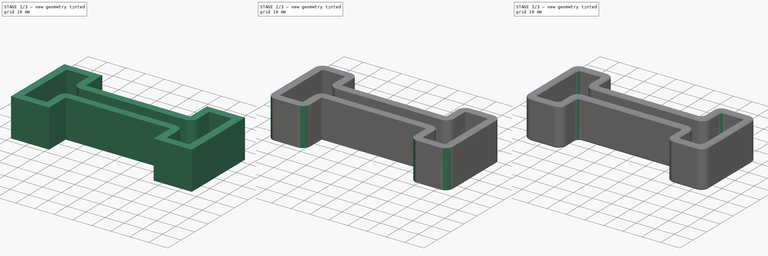
[diagram: build sequence overview — one tinted view per stage of 3, left to right]
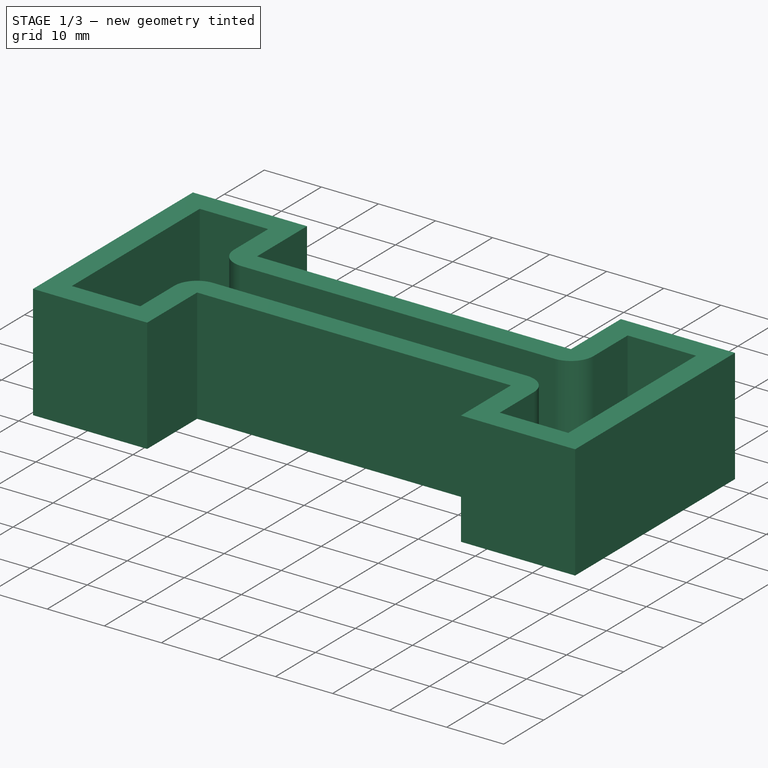
[diagram: stage 1 of 3 — iso view after this stage's code; geometry added in this stage tinted green]
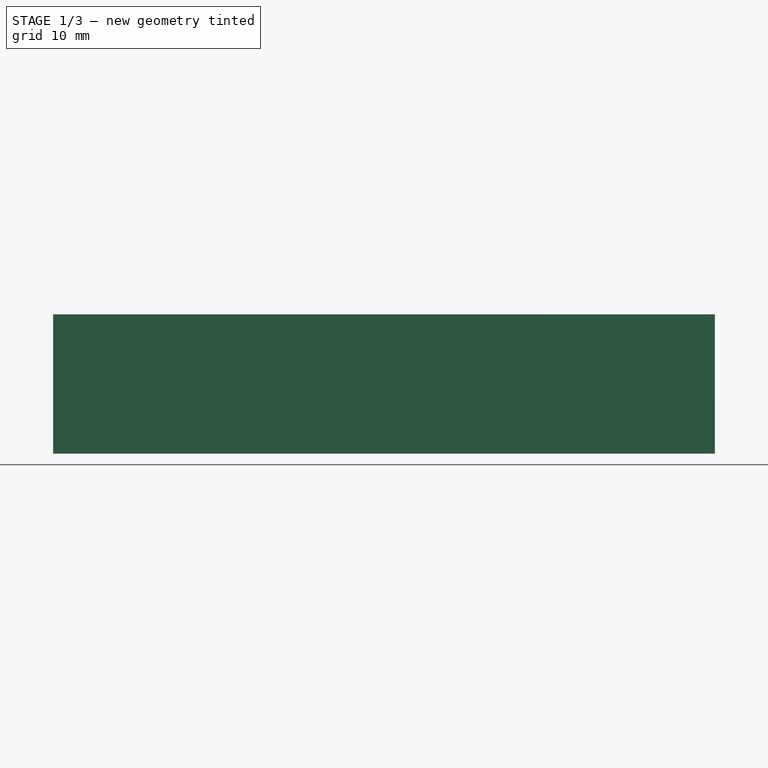
[diagram: stage 1 of 3 — front view after this stage's code; geometry added in this stage tinted green]
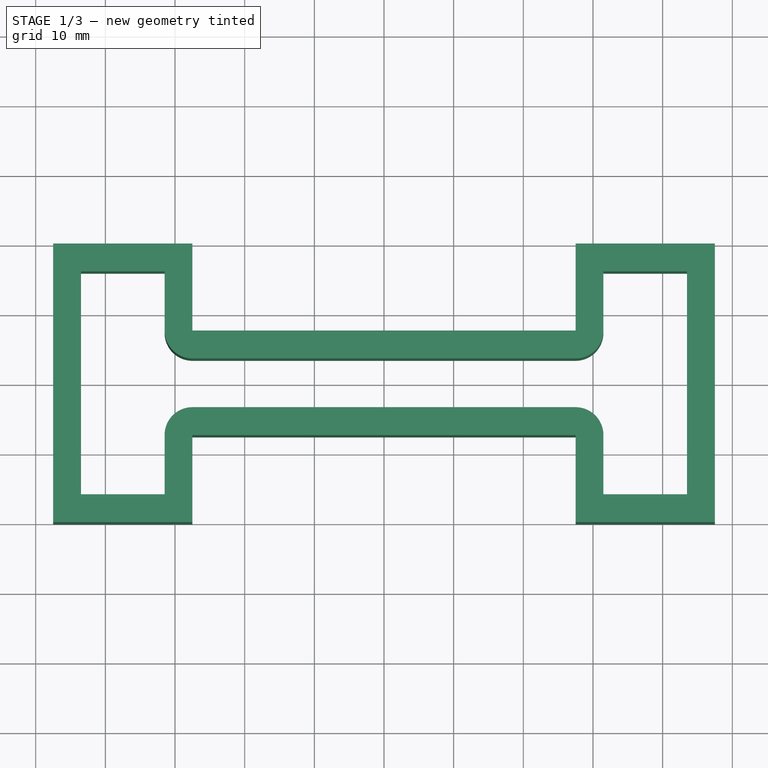
[diagram: stage 1 of 3 — top view after this stage's code; geometry added in this stage tinted green]
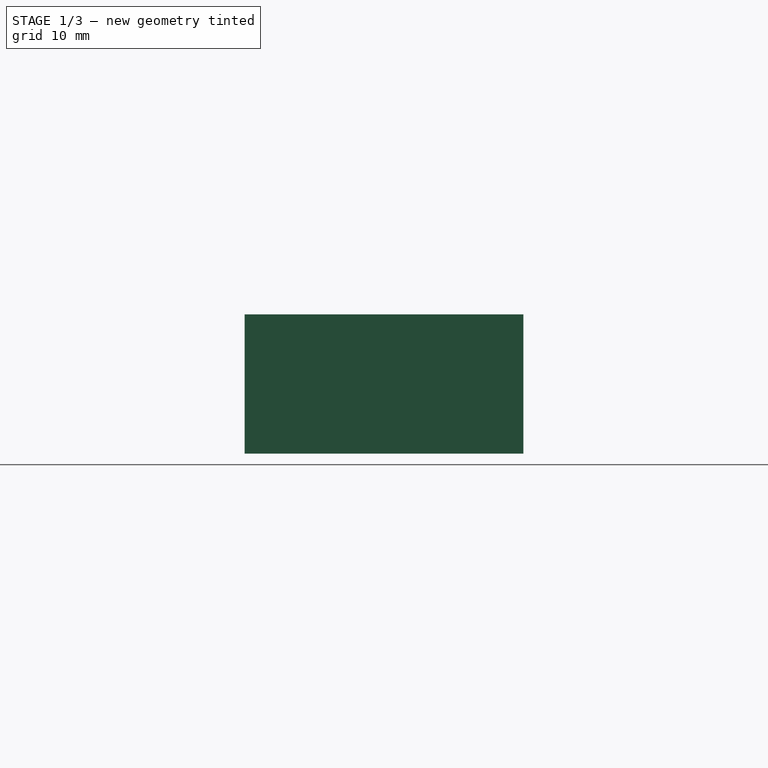
[diagram: stage 1 of 3 — right view after this stage's code; geometry added in this stage tinted green]
FCSTD DOCUMENT  (FreeCAD 0.22R36958 (Git))
Label: refer-door-block
License: All rights reserved
LicenseURL: http://en.wikipedia.org/wiki/All_rights_reserved
objects: PartDesign::Fillet×2, Sketcher::SketchObject×1, PartDesign::Pad×1, PartDesign::Thickness×1, PartDesign::Chamfer×1, PartDesign::Body×1
note: 12 computed .brp shape members not serialized (recipe doc carries the construction recipe); baked Part::Feature solids carry a one-line shape summary decoded from their .brp

FEATURE [Sketcher::SketchObject] Sketch
  AttachmentSupport = -> [XY_Plane]
  FullyConstrained = true
  MapMode = 5
  sketch-geometry (12):
    g0: LineSegment StartX=-47.5 StartY=20 StartZ=0 EndX=-27.5 EndY=20 EndZ=0
    g1: LineSegment StartX=-27.5 StartY=20 StartZ=0 EndX=-27.5 EndY=7.5 EndZ=0
    g2: LineSegment StartX=-27.5 StartY=7.5 StartZ=0 EndX=27.5 EndY=7.5 EndZ=0
    g3: LineSegment StartX=27.5 StartY=7.5 StartZ=0 EndX=27.5 EndY=20 EndZ=0
    g4: LineSegment StartX=27.5 StartY=20 StartZ=0 EndX=47.5 EndY=20 EndZ=0
    g5: LineSegment StartX=47.5 StartY=20 StartZ=0 EndX=47.5 EndY=-20 EndZ=0
    g6: LineSegment StartX=47.5 StartY=-20 StartZ=0 EndX=27.5 EndY=-20 EndZ=0
    g7: LineSegment StartX=27.5 StartY=-20 StartZ=0 EndX=27.5 EndY=-7.5 EndZ=0
    g8: LineSegment StartX=27.5 StartY=-7.5 StartZ=0 EndX=-27.5 EndY=-7.5 EndZ=0
    g9: LineSegment StartX=-27.5 StartY=-7.5 StartZ=0 EndX=-27.5 EndY=-20 EndZ=0
    g10: LineSegment StartX=-27.5 StartY=-20 StartZ=0 EndX=-47.5 EndY=-20 EndZ=0
    g11: LineSegment StartX=-47.5 StartY=-20 StartZ=0 EndX=-47.5 EndY=20 EndZ=0
  constraints (34):
    c: Horizontal(g0)
    c: Coincident(g0,g1)
    c: Vertical(g1)
    c: Coincident(g1,g2)
    c: Horizontal(g2)
    c: Coincident(g2,g3)
    c: Vertical(g3)
    c: Coincident(g3,g4)
    c: Horizontal(g4)
    c: Coincident(g4,g5)
    c: Vertical(g5)
    c: Coincident(g5,g6)
    c: Horizontal(g6)
    c: Coincident(g6,g7)
    c: Vertical(g7)
    c: Coincident(g7,g8)
    c: Coincident(g8,g9)
    c: Vertical(g9)
    c: Coincident(g9,g10)
    c: Horizontal(g10)
    c: Coincident(g10,g11)
    c: Coincident(g11,g0)
    c: Vertical(g11)
    c: Equal(g11,g5)
    c: Equal(g0,g10)
    c: Equal(g0,g4)
    c: Symmetric(g8,g7,g-2)
    c: DistanceX(g0,g0) = 20
    c: DistanceY(g11,g11) = 40
    c: DistanceY(g8,g1) = 15
    c: Equal(g1,g9)
    c: Horizontal(g9,g6)
    c: DistanceX(g1,g2) = 55
    c: Symmetric(g2,g7,g-1)
FEATURE [PartDesign::Pad] Pad
  Direction = (0,0,1)
  Length = 20
  Length2 = 10
  Profile = -> Sketch
  ReferenceAxis = -> Sketch [N_Axis]
  Suppressed = false
  Type = 0
FEATURE [PartDesign::Thickness] Thickness
  Base = -> Pad [Face13,Face14]
  BaseFeature = -> Pad
  Intersection = false
  Join = 0
  Mode = 0
  Reversed = true
  SupportTransform = false
  Suppressed = false
  Value = 4
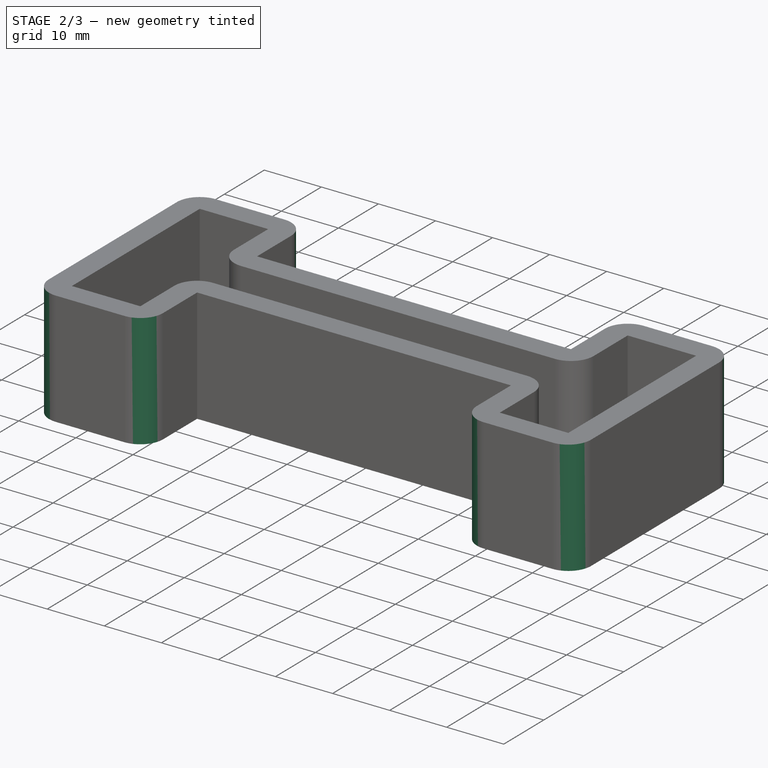
[diagram: stage 2 of 3 — iso view after this stage's code; geometry added in this stage tinted green]
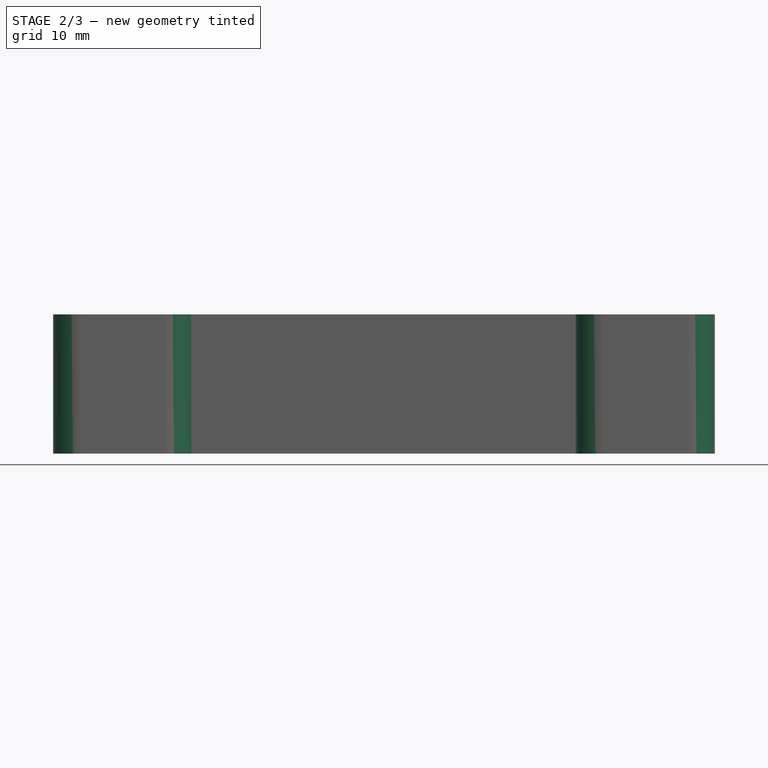
[diagram: stage 2 of 3 — front view after this stage's code; geometry added in this stage tinted green]
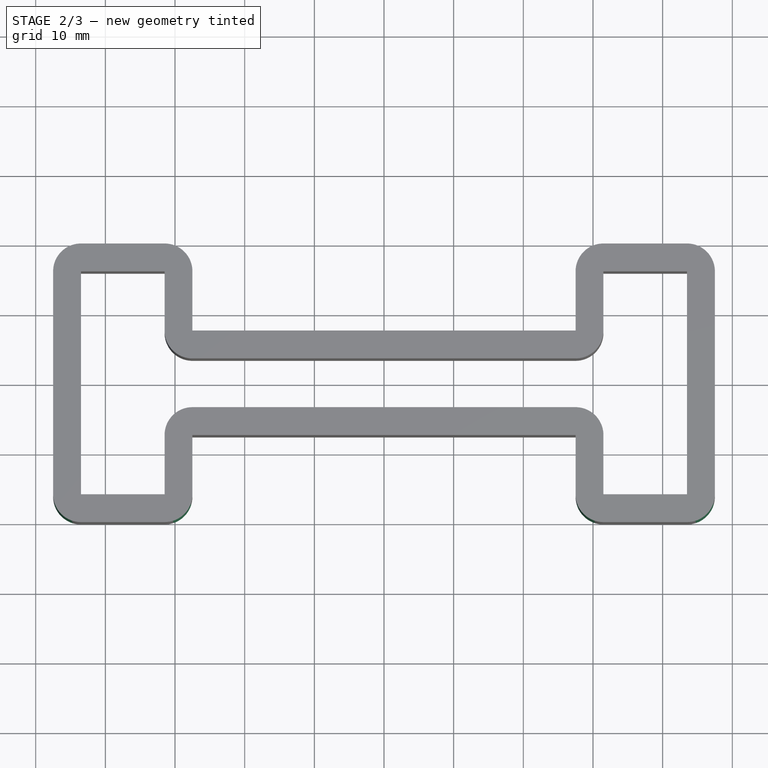
[diagram: stage 2 of 3 — top view after this stage's code; geometry added in this stage tinted green]
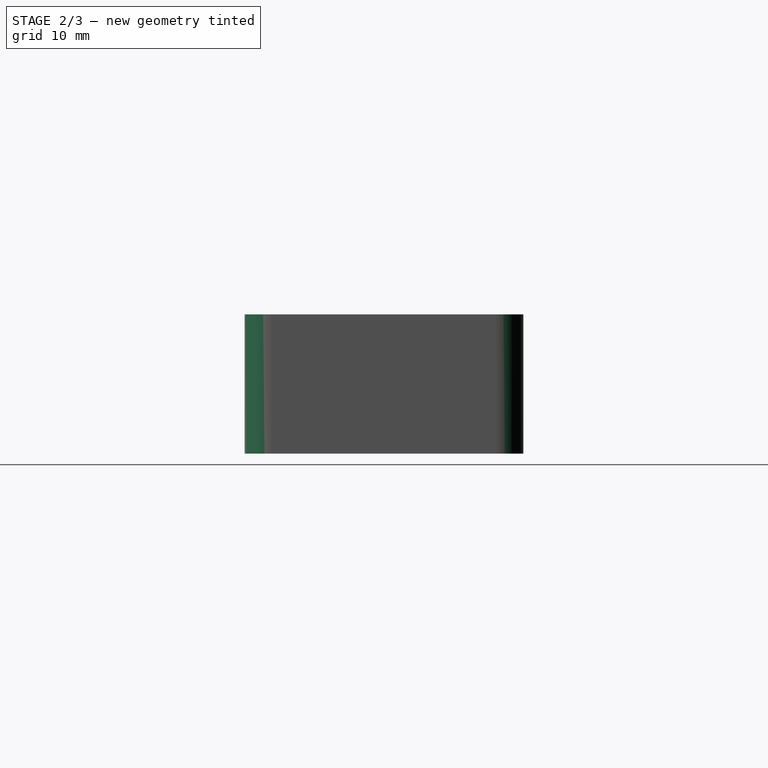
[diagram: stage 2 of 3 — right view after this stage's code; geometry added in this stage tinted green]
FEATURE [PartDesign::Fillet] Fillet
  Base = -> Thickness [Edge32,Edge29,Edge20,Edge17,Edge14,Edge11,Edge2,Edge1]
  BaseFeature = -> Thickness
  Radius = 4
  SupportTransform = false
  Suppressed = false
  UseAllEdges = false
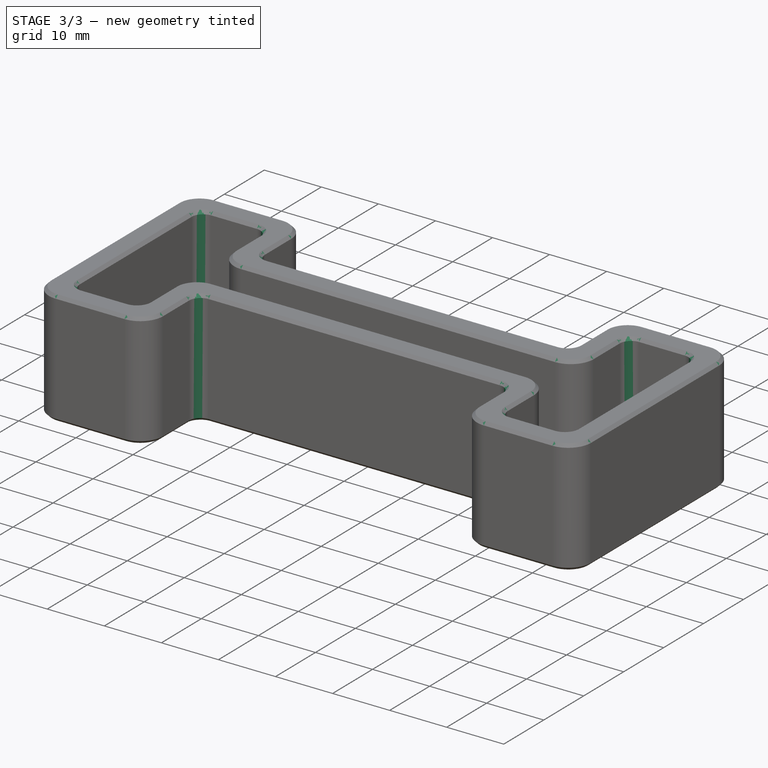
[diagram: stage 3 of 3 — iso view after this stage's code; geometry added in this stage tinted green]
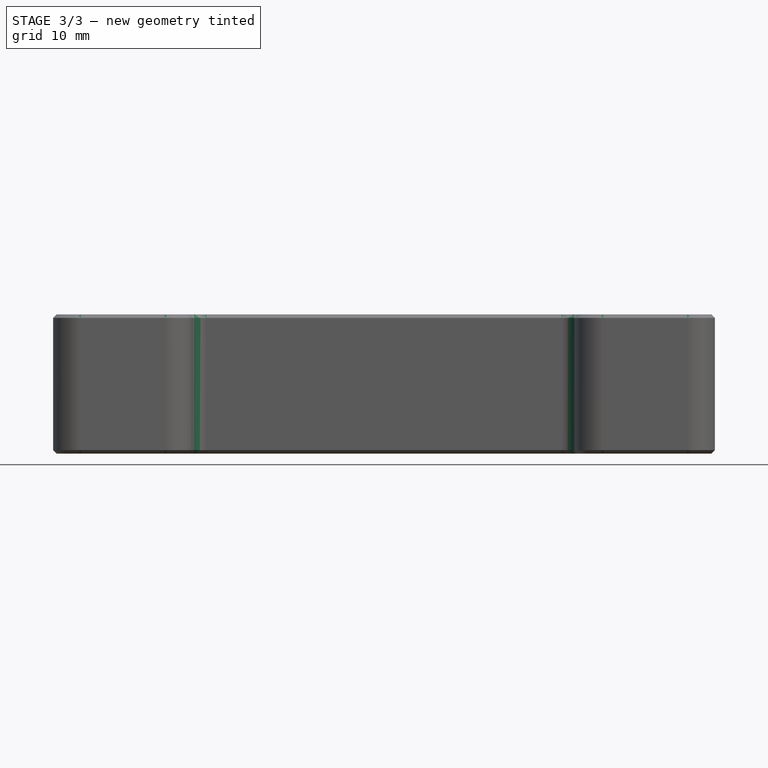
[diagram: stage 3 of 3 — front view after this stage's code; geometry added in this stage tinted green]
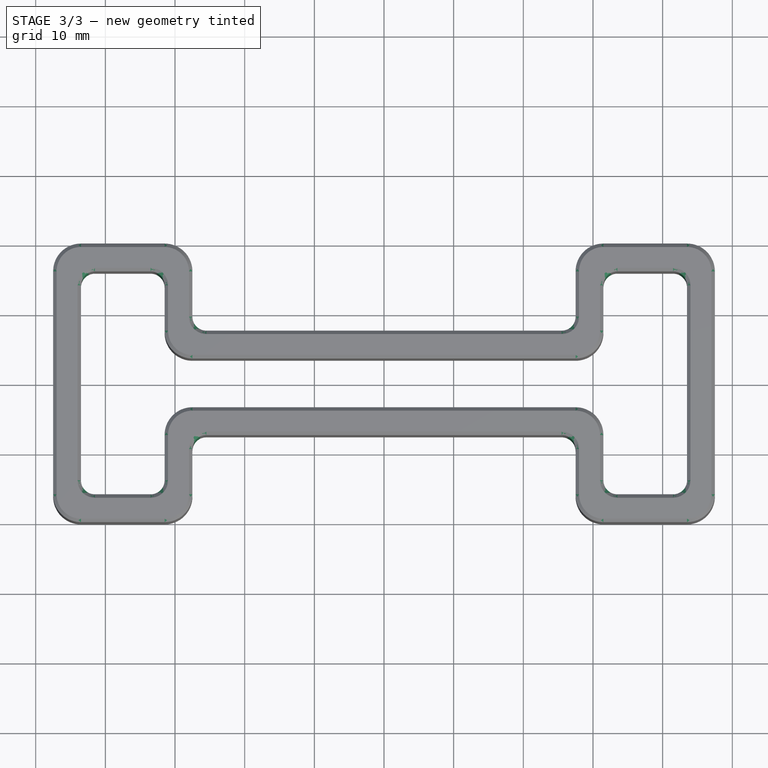
[diagram: stage 3 of 3 — top view after this stage's code; geometry added in this stage tinted green]
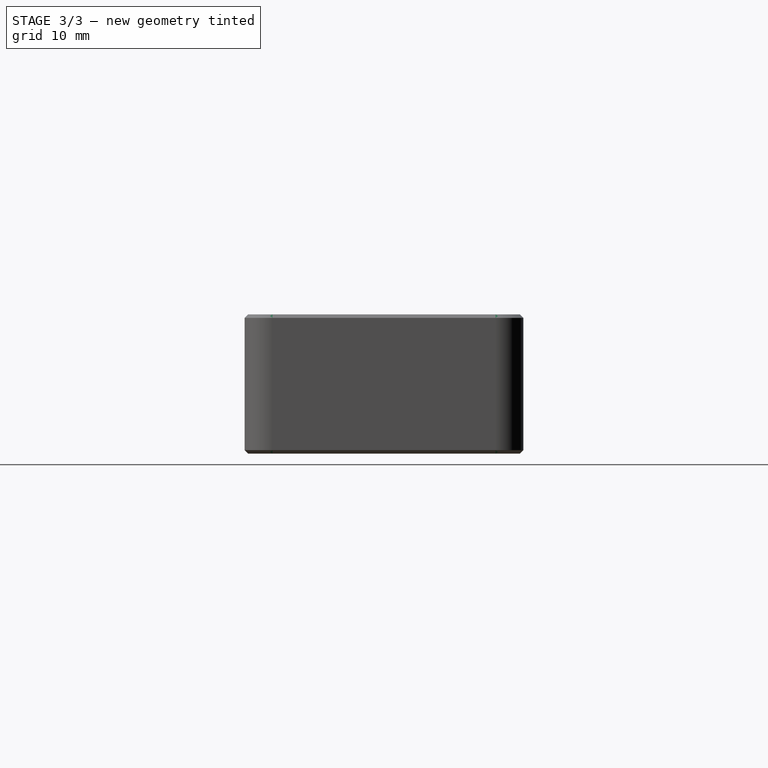
[diagram: stage 3 of 3 — right view after this stage's code; geometry added in this stage tinted green]
FEATURE [PartDesign::Fillet] Fillet001
  Base = -> Fillet [Edge85,Edge78,Edge80,Edge87,Edge95,Edge96,Edge93,Edge94,Edge101,Edge102,Edge104,Edge103]
  BaseFeature = -> Fillet
  Radius = 2
  SupportTransform = false
  Suppressed = false
  UseAllEdges = false
FEATURE [PartDesign::Chamfer] Chamfer
  Angle = 45
  Base = -> Fillet001 [Face50,Face1]
  BaseFeature = -> Fillet001
  ChamferType = 0
  FlipDirection = false
  Size = 0.5
  Size2 = 1
  SupportTransform = false
  Suppressed = false
  UseAllEdges = false
FEATURE [PartDesign::Body] Body  label="blocker"
  Group = -> [Sketch,Pad,Thickness,Fillet,Fillet001,Chamfer]
  Origin = -> Origin
  Tip = -> Chamfer
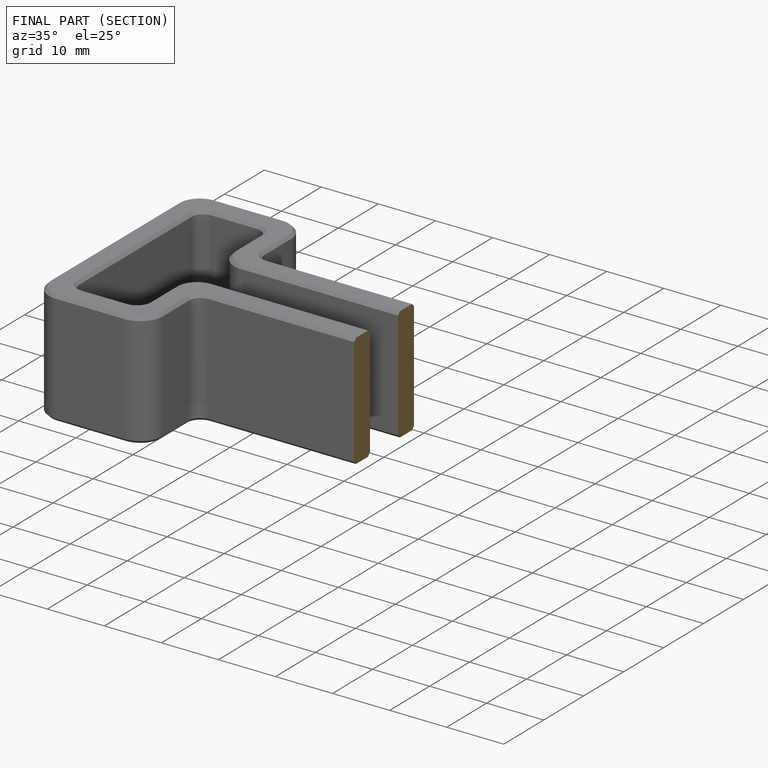
[diagram: finished part — half-section view (interior)]
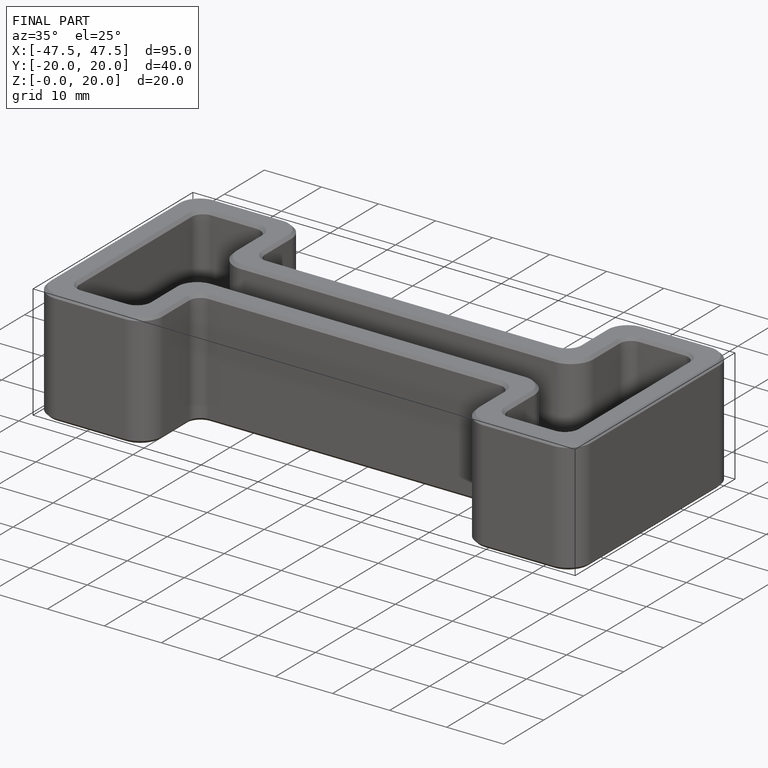
[diagram: finished part — iso view with bounding-box wireframe]
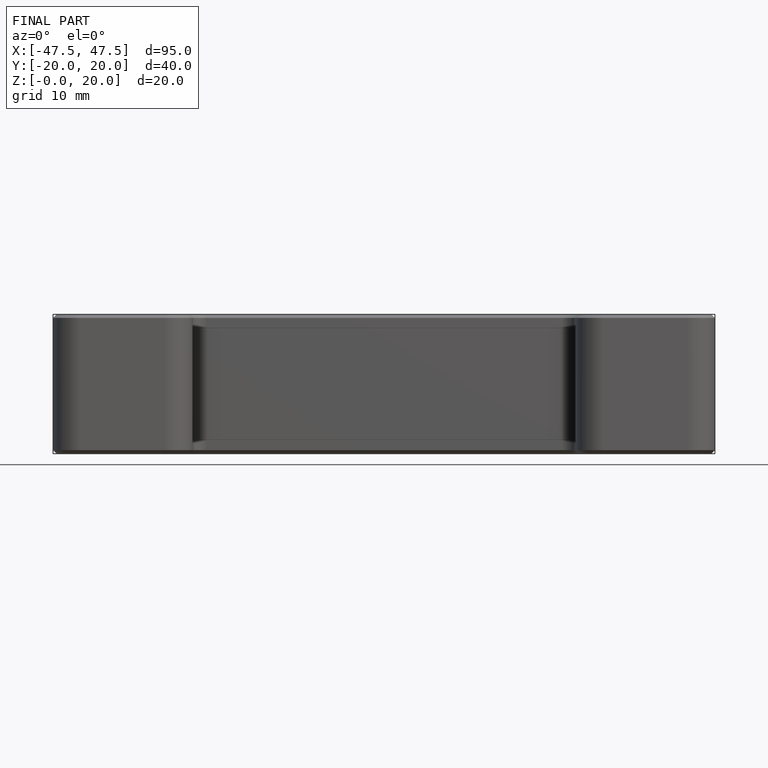
[diagram: finished part — front view with bounding-box wireframe]
